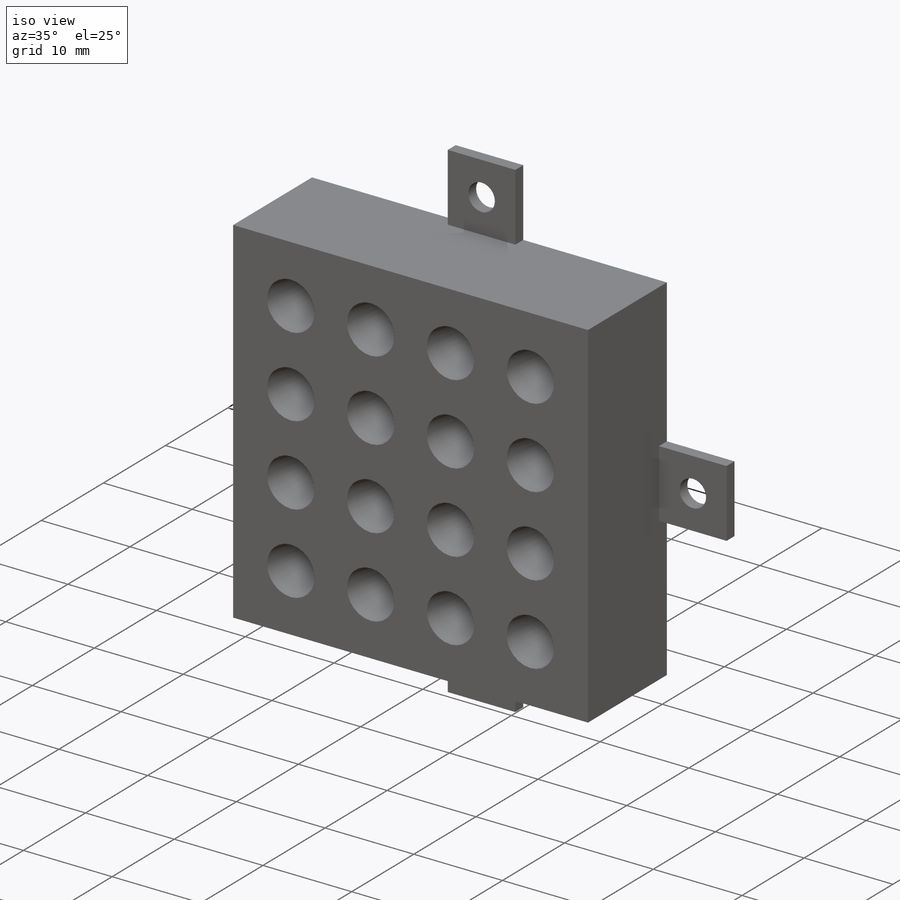
[diagram: iso view]
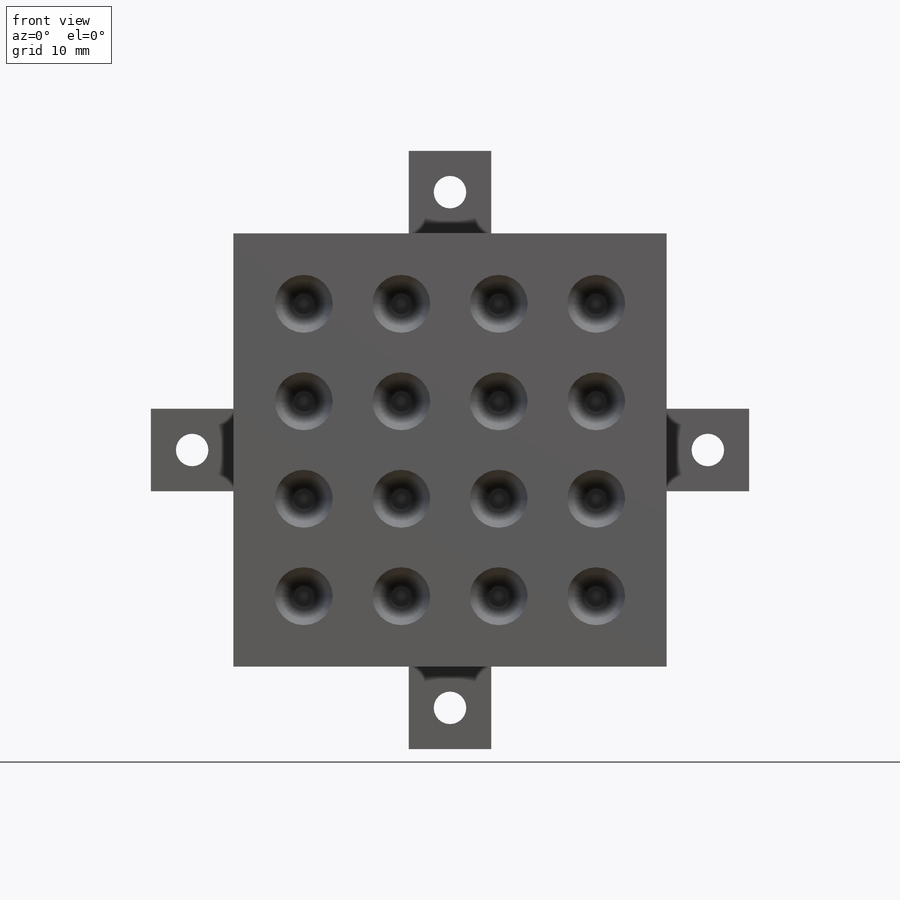
[diagram: front view]
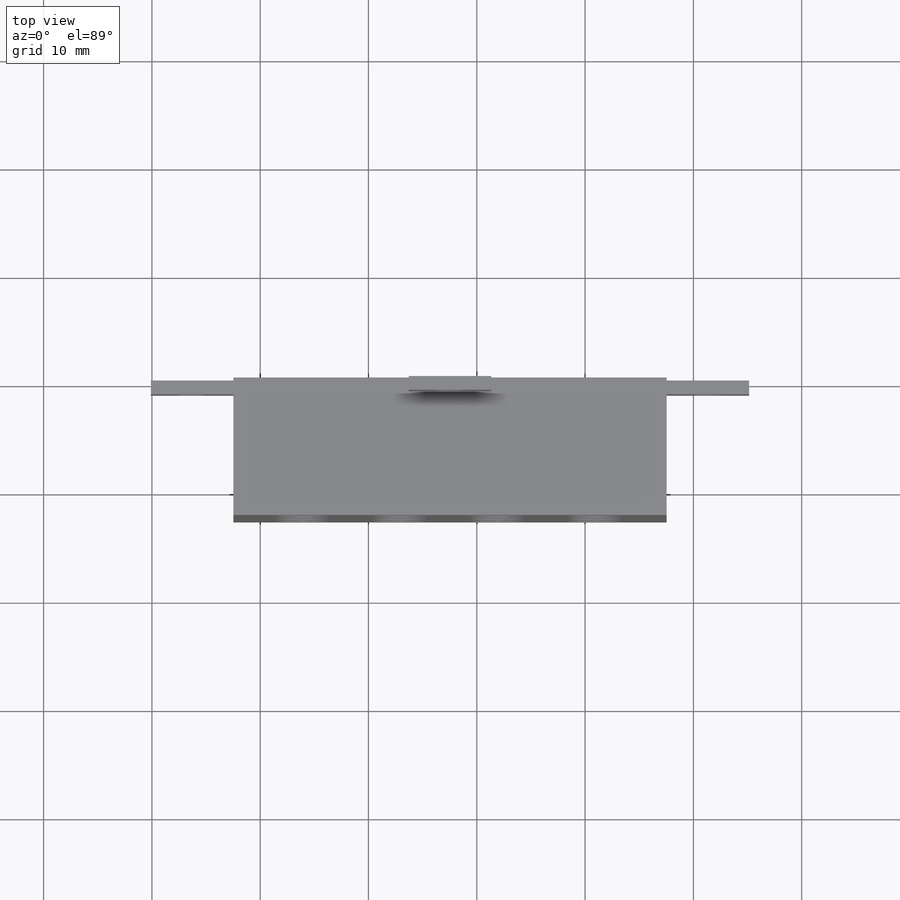
[diagram: top view]
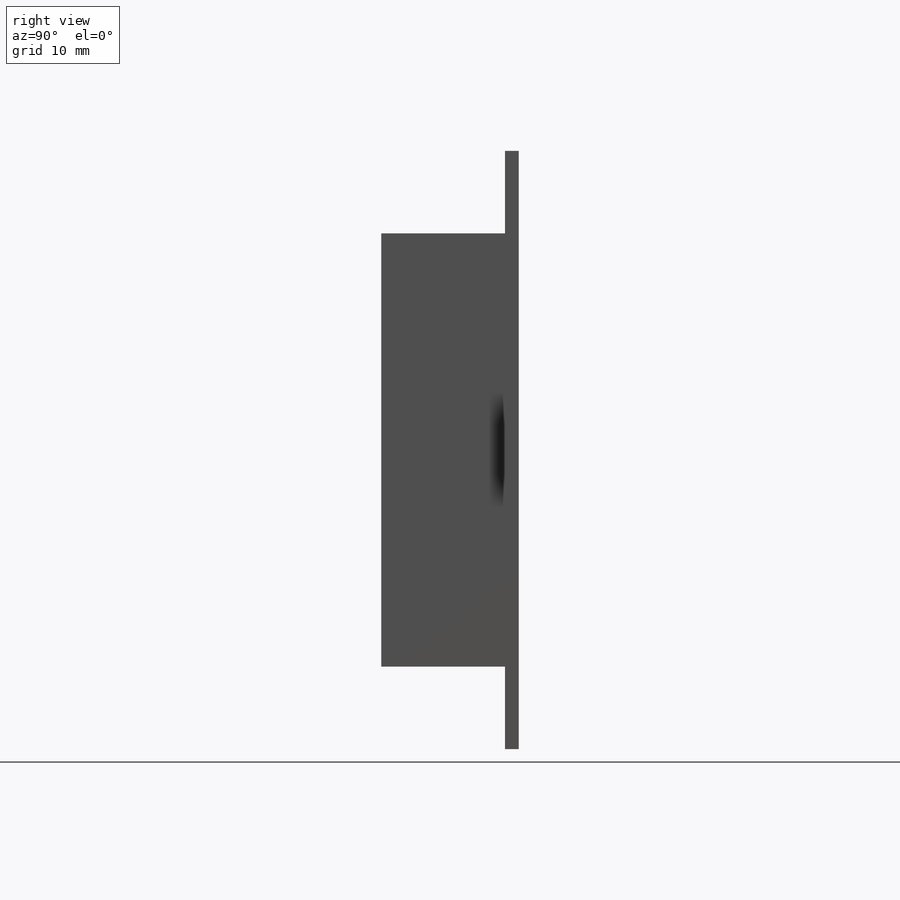
[diagram: right view]
SOLIDWORKS PART (.sldprt)
format: sldprt  version: not decoded by parser v0  size: 410,112 bytes
history: native  units: mm
features: sketch x11, extrude x5, cut_extrude x3, plane x2, material x1, hole x1 (+11 scaffold rows collapsed)
feature tree (34):
  scaffold x11  (default folders/planes/origin — collapsed)
  material  "Material <not specified>"
  sketch  "Sketch1"  dims[D1=40.0mm D2=40.0mm]
  extrude  "Boss-Extrude1"  Depth=12.7mm
  sketch  "Sketch2"  dims[c1.D1=~5.351169mm c1.D2=5.0mm c1.D7=~5.351169mm c2.D2=6.5mm c2.D5=6.5mm c2.D6=9.0mm c2.D3=4.0 c2.D4=4.0]
  cut_extrude  "Cut-Extrude1"  Depth=11.176mm
  sketch  "Sketch3"  dims[c1.D1=1.27mm c1.D2=7.62mm c1.D3=~16.18996mm c1.D4=~16.18996mm c1.D5=90.0deg c2.D3=~16.18996mm]
  extrude  "Boss-Extrude2"  Depth=7.62mm
  sketch  "Sketch4"  dims[c1.D1=7.62mm c1.D2=~16.18996mm c1.D3=1.27mm c1.D4=~16.18996mm c1.D5=90.0deg c2.D5=~16.18996mm c2.D6=90.0deg c2.D2=~16.18996mm]
  extrude  "Boss-Extrude3"  Depth=7.62mm
  sketch  "Sketch5"  dims[c1.D1=~16.18996mm c1.D2=7.62mm c1.D3=1.27mm c1.D4=~16.227152mm c1.D5=~16.18996mm c1.D6=~16.18996mm c2.D1=~16.18996mm]
  extrude  "Boss-Extrude4"  Depth=7.62mm
  sketch  "Sketch6"  dims[c1.D1=7.62mm c1.D2=~16.18996mm c1.D3=1.27mm c1.D4=~16.192346mm c2.D2=~16.18996mm]
  extrude  "Boss-Extrude5"  Depth=7.62mm
  sketch  "Sketch7"  dims[c1.D1=3.0mm c1.D4=3.0mm c1.D7=3.0mm c1.D10=3.2512mm c1.D12=3.0mm c1.D2=3.81mm c1.D3=3.81mm c1.D5=3.81mm c1.D6=3.81mm c1.D8=3.81mm c1.D9=3.81mm c2.D10=3.81mm c2.D11=3.81mm c2.D13=47.62mm c2.D14=47.62mm]
  cut_extrude  "M3 diameter holes"  Depth=7.62mm
  sketch  "Sketch8"  dims[c1.D1=0.9144mm c1.D4=~0.05334mm c1.D5=0.889mm c1.D2=6.35mm c1.D3=20.0mm c2.D2=5.08mm c2.D5=~13.587748mm c2.D6=7.62mm c2.D3=20.0mm]
  plane  "Plane1"
  sketch  "Sketch10"  dims[c1.D1=7.62mm c1.D2=7.62mm c2.D2=15.0deg]
  plane  "Plane3"
  hole  "#64 (0.036) Diameter Hole1"  Diameter=0.9144mm Depth=7.6mm
  sketch  "Sketch16"  dims[D1=0.0mm]
  sketch  "Sketch15"  dims[hole-wizard template sketch: 46 standard entries collapsed; hole parameters kept: c15.Hole Dia.=0.9144mm c15.Hole Depth=7.6mm c15.D3=~14.816244mm c15.Drill Angle=118.0deg]
  cut_extrude  "Cut-Extrude3"  Depth=2mm
decode coverage: 20 of 20 modeling features carry decoded parameters
note: ~ marks probable driven/reference dimensions
note: suppression state not decoded; provenance and decode notes live in map.json
